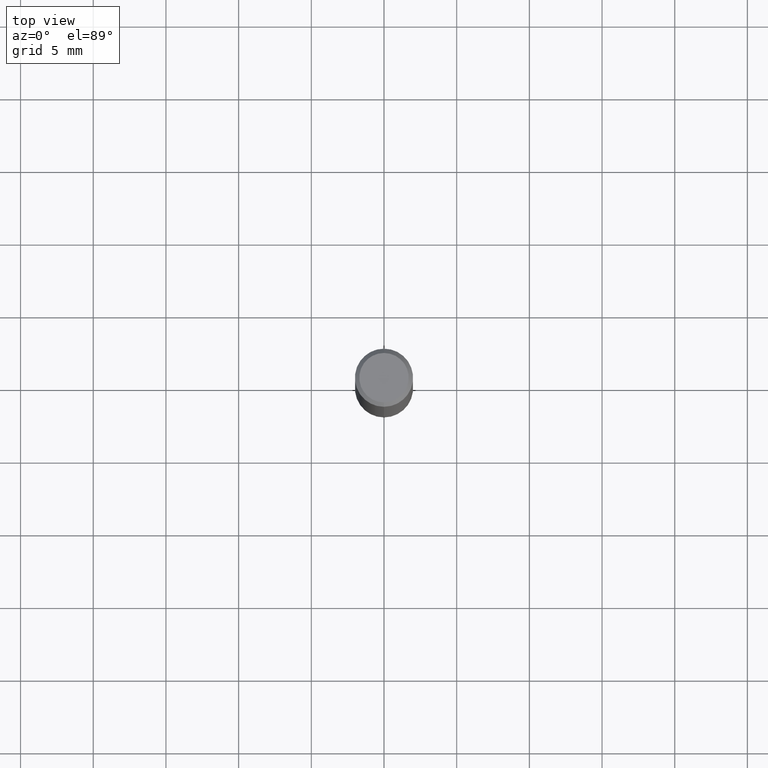
[diagram: clean part render]
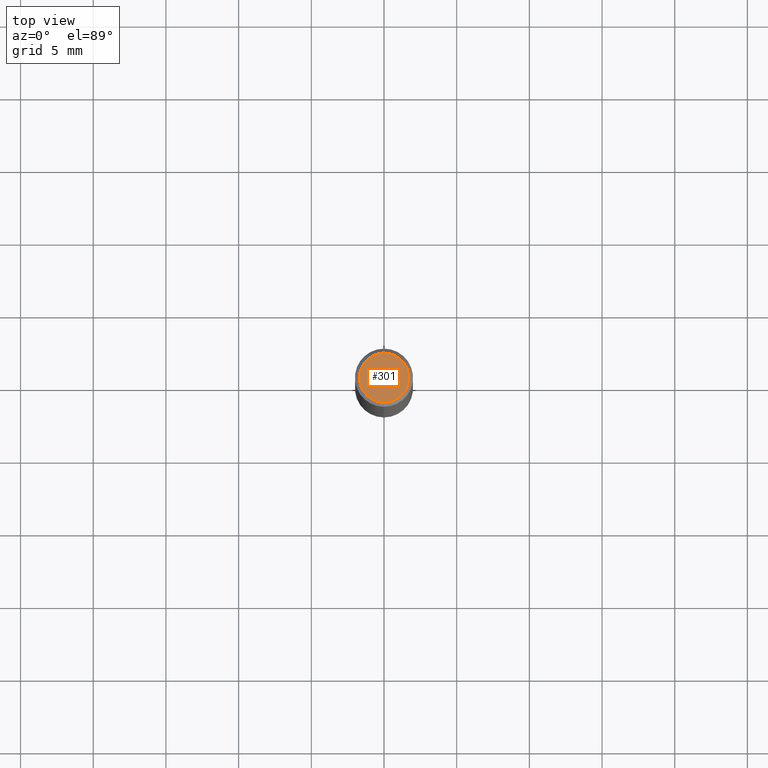
[diagram: same view with one face highlighted and labeled with its STEP entity id]
A machine part, top view. The second image highlights one B-rep face of the part: STEP entity #301.
In plain terms, the highlighted planar face has unit normal (-0, 0, 1).
Its self-contained STEP definition (entity closure, byte-faithful):
#209=VERTEX_POINT('',#460);
#211=EDGE_CURVE('',#341,#209,#462,.T.);
#267=EDGE_CURVE('',#209,#341,#525,.T.);
#301=ADVANCED_FACE('',(#559),#560,.T.);
#341=VERTEX_POINT('',#605);
#460=CARTESIAN_POINT('',(2.08183080149804E-016,-1.7,0.00999999999999801));
#462=CIRCLE('',#742,1.7);
#525=CIRCLE('',#820,1.7);
#559=FACE_OUTER_BOUND('',#865,.T.);
#560=PLANE('',#866);
#605=CARTESIAN_POINT('',(0.0,1.7,0.00999999999999801));
#742=AXIS2_PLACEMENT_3D('',#1077,#1078,#1079);
#820=AXIS2_PLACEMENT_3D('',#1164,#1165,#1166);
#865=EDGE_LOOP('',(#1191,#1192));
#866=AXIS2_PLACEMENT_3D('',#1193,#1194,#1195);
#1077=CARTESIAN_POINT('',(0.0,0.0,0.00999999999999801));
#1078=DIRECTION('',(0.0,0.0,-1.0));
#1079=DIRECTION('',(0.0,1.0,0.0));
#1164=CARTESIAN_POINT('',(0.0,0.0,0.00999999999999801));
#1165=DIRECTION('',(0.0,0.0,-1.0));
#1166=DIRECTION('',(0.0,1.0,0.0));
#1191=ORIENTED_EDGE('',*,*,#211,.F.);
#1192=ORIENTED_EDGE('',*,*,#267,.F.);
#1193=CARTESIAN_POINT('',(0.0,0.85,0.00999999999999801));
#1194=DIRECTION('',(-0.0,0.0,1.0));
#1195=DIRECTION('',(0.0,-1.0,0.0));